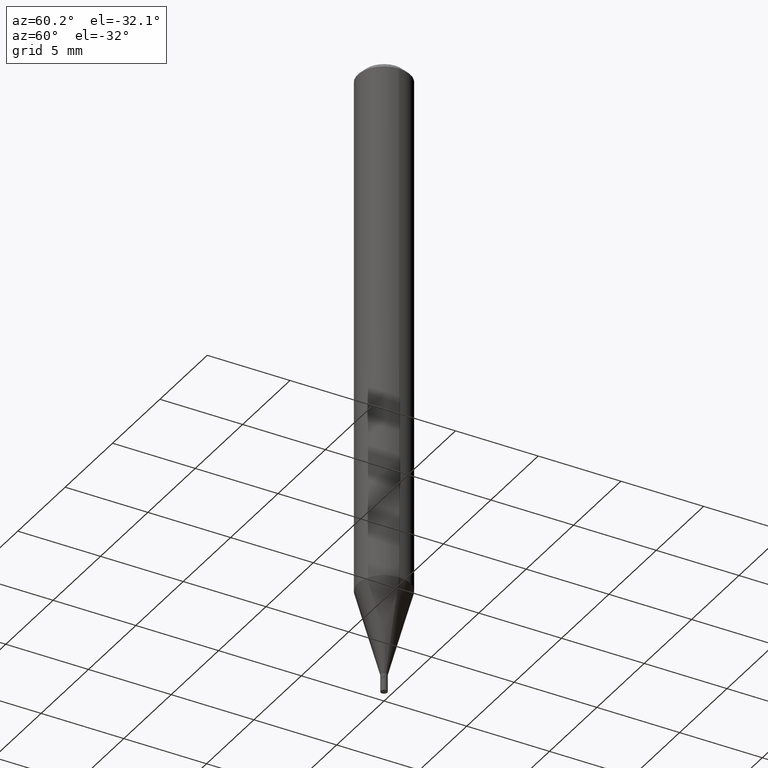
[diagram: clean part render]
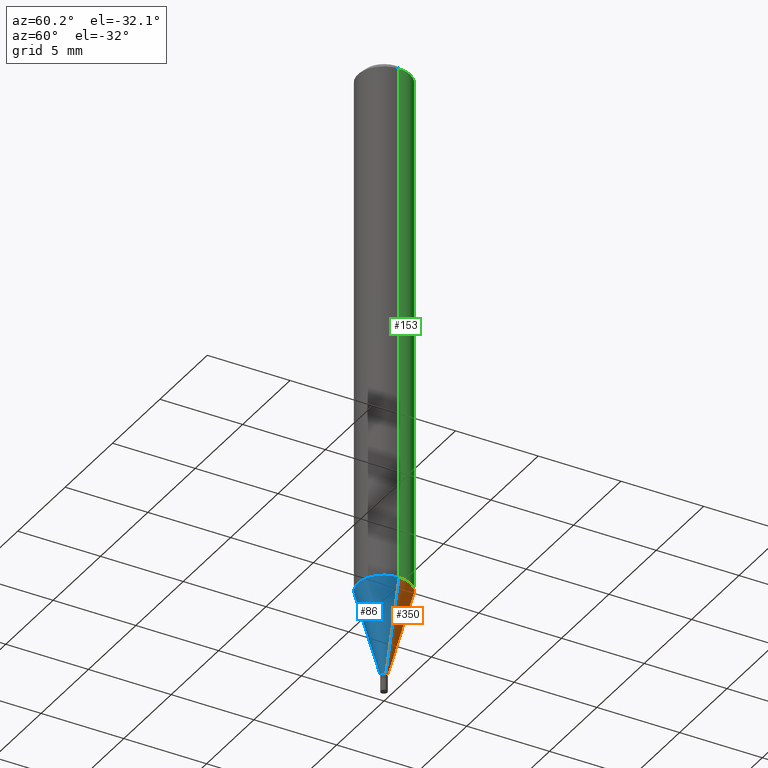
[diagram: same view with three faces highlighted in distinct colors, each labeled with its STEP entity id]
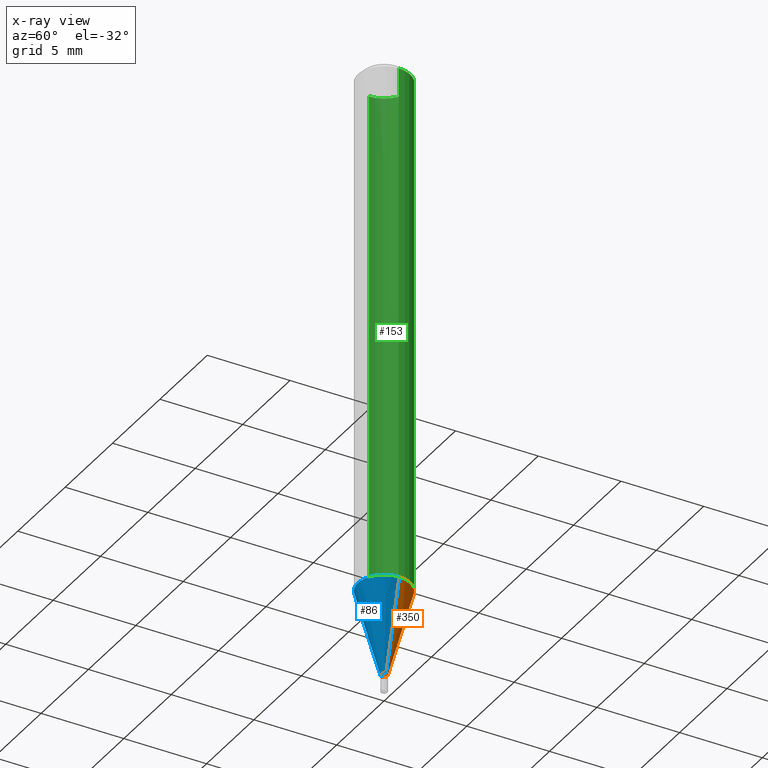
[diagram: x-ray of the same camera — body ghosted, the three highlighted faces saturated]
A machine part, auxiliary view with three faces highlighted in distinct colors.
The next image is the same camera in x-ray (body ghosted, the three faces saturated) — at least one of them is partly hidden behind the body in this view.
Their STEP definitions:

[orange] entity #350 — the highlighted conical surface has half-angle 15 deg.
#1 = DIRECTION ( 'NONE',  ( 1.000000000000000000, -6.982962677686232001E-15, 0.000000000000000000 ) ) ;
#21 = VERTEX_POINT ( 'NONE', #462 ) ;
#64 = EDGE_LOOP ( 'NONE', ( #453, #336, #349, #248 ) ) ;
#65 = LINE ( 'NONE', #432, #265 ) ;
#68 = DIRECTION ( 'NONE',  ( 0.2588190451025216832, 1.565188264969619798E-15, 0.9659258262890679791 ) ) ;
#76 = CARTESIAN_POINT ( 'NONE',  ( -0.007799999999999640554, -4.487934451483375945E-15, -1.459000000000000297 ) ) ;
#84 = CARTESIAN_POINT ( 'NONE',  ( 0.007799999999999640554, -5.148538382258100273E-15, -1.459000000000000297 ) ) ;
#94 = AXIS2_PLACEMENT_3D ( 'NONE', #139, #115, #1 ) ;
#96 = EDGE_CURVE ( 'NONE', #103, #212, #306, .T. ) ;
#103 = VERTEX_POINT ( 'NONE', #84 ) ;
#115 = DIRECTION ( 'NONE',  ( -2.445468806185136597E-29, 3.491481338843145583E-15, 1.000000000000000000 ) ) ;
#139 = CARTESIAN_POINT ( 'NONE',  ( 3.567938988224114792E-29, -5.094071273372150151E-15, -1.459000000000000297 ) ) ;
#157 = LINE ( 'NONE', #228, #443 ) ;
#189 = DIRECTION ( 'NONE',  ( -2.445468806185136597E-29, 3.491481338843145583E-15, 1.000000000000000000 ) ) ;
#193 = AXIS2_PLACEMENT_3D ( 'NONE', #371, #198, #329 ) ;
#198 = DIRECTION ( 'NONE',  ( -2.445468806185136597E-29, 3.491481338843145583E-15, 1.000000000000000000 ) ) ;
#204 = AXIS2_PLACEMENT_3D ( 'NONE', #367, #189, #331 ) ;
#212 = VERTEX_POINT ( 'NONE', #76 ) ;
#226 = EDGE_CURVE ( 'NONE', #103, #21, #65, .T. ) ;
#228 = CARTESIAN_POINT ( 'NONE',  ( -0.007799999999999640554, -5.038648939982864496E-15, -1.459000000000000297 ) ) ;
#248 = ORIENTED_EDGE ( 'NONE', *, *, #226, .F. ) ;
#261 = FACE_OUTER_BOUND ( 'NONE', #64, .T. ) ;
#265 = VECTOR ( 'NONE', #68, 39.37007874015748143 ) ;
#306 = CIRCLE ( 'NONE', #94, 0.007799999999999640554 ) ;
#326 = EDGE_CURVE ( 'NONE', #21, #385, #426, .T. ) ;
#329 = DIRECTION ( 'NONE',  ( 1.000000000000000000, -6.982962677686261189E-15, 0.000000000000000000 ) ) ;
#331 = DIRECTION ( 'NONE',  ( 1.000000000000000000, -6.982962677686232001E-15, 0.000000000000000000 ) ) ;
#336 = ORIENTED_EDGE ( 'NONE', *, *, #372, .T. ) ;
#343 = CONICAL_SURFACE ( 'NONE', #204, 0.007799999999999640554, 0.2617993877991502960 ) ;
#349 = ORIENTED_EDGE ( 'NONE', *, *, #326, .F. ) ;
#350 = ADVANCED_FACE ( 'NONE', ( #261 ), #343, .T. ) ;
#367 = CARTESIAN_POINT ( 'NONE',  ( 3.567938988224114792E-29, -5.094071273372150151E-15, -1.459000000000000297 ) ) ;
#371 = CARTESIAN_POINT ( 'NONE',  ( 3.068713211558588799E-29, -4.381309172833951587E-15, -1.254856820825981378 ) ) ;
#372 = EDGE_CURVE ( 'NONE', #212, #385, #157, .T. ) ;
#374 = CARTESIAN_POINT ( 'NONE',  ( -0.06250000000000015266, -3.937219962983887393E-15, -1.254856820825981378 ) ) ;
#385 = VERTEX_POINT ( 'NONE', #374 ) ;
#426 = CIRCLE ( 'NONE', #193, 0.06250000000000015266 ) ;
#432 = CARTESIAN_POINT ( 'NONE',  ( 0.007799999999999640554, -5.148538382258100273E-15, -1.459000000000000297 ) ) ;
#437 = DIRECTION ( 'NONE',  ( -0.2588190451025216832, 5.211531920934551831E-15, 0.9659258262890679791 ) ) ;
#443 = VECTOR ( 'NONE', #437, 39.37007874015748143 ) ;
#453 = ORIENTED_EDGE ( 'NONE', *, *, #96, .T. ) ;
#462 = CARTESIAN_POINT ( 'NONE',  ( 0.06250000000000015266, -4.817744340189344045E-15, -1.254856820825981378 ) ) ;

[blue] entity #86 — the highlighted conical surface has half-angle 15 deg.
#3 = EDGE_CURVE ( 'NONE', #212, #103, #213, .T. ) ;
#21 = VERTEX_POINT ( 'NONE', #462 ) ;
#25 = AXIS2_PLACEMENT_3D ( 'NONE', #227, #363, #45 ) ;
#39 = DIRECTION ( 'NONE',  ( -2.445468806185136597E-29, 3.491481338843145583E-15, 1.000000000000000000 ) ) ;
#45 = DIRECTION ( 'NONE',  ( 1.000000000000000000, -6.982962677686261189E-15, 0.000000000000000000 ) ) ;
#54 = EDGE_CURVE ( 'NONE', #385, #21, #117, .T. ) ;
#65 = LINE ( 'NONE', #432, #265 ) ;
#68 = DIRECTION ( 'NONE',  ( 0.2588190451025216832, 1.565188264969619798E-15, 0.9659258262890679791 ) ) ;
#69 = AXIS2_PLACEMENT_3D ( 'NONE', #436, #398, #459 ) ;
#76 = CARTESIAN_POINT ( 'NONE',  ( -0.007799999999999640554, -4.487934451483375945E-15, -1.459000000000000297 ) ) ;
#84 = CARTESIAN_POINT ( 'NONE',  ( 0.007799999999999640554, -5.148538382258100273E-15, -1.459000000000000297 ) ) ;
#86 = ADVANCED_FACE ( 'NONE', ( #399 ), #175, .T. ) ;
#97 = ORIENTED_EDGE ( 'NONE', *, *, #226, .T. ) ;
#103 = VERTEX_POINT ( 'NONE', #84 ) ;
#117 = CIRCLE ( 'NONE', #25, 0.06250000000000015266 ) ;
#157 = LINE ( 'NONE', #228, #443 ) ;
#158 = ORIENTED_EDGE ( 'NONE', *, *, #54, .F. ) ;
#175 = CONICAL_SURFACE ( 'NONE', #384, 0.007799999999999640554, 0.2617993877991502960 ) ;
#191 = CARTESIAN_POINT ( 'NONE',  ( 3.567938988224114792E-29, -5.094071273372150151E-15, -1.459000000000000297 ) ) ;
#212 = VERTEX_POINT ( 'NONE', #76 ) ;
#213 = CIRCLE ( 'NONE', #69, 0.007799999999999640554 ) ;
#226 = EDGE_CURVE ( 'NONE', #103, #21, #65, .T. ) ;
#227 = CARTESIAN_POINT ( 'NONE',  ( 3.068713211558588799E-29, -4.381309172833951587E-15, -1.254856820825981378 ) ) ;
#228 = CARTESIAN_POINT ( 'NONE',  ( -0.007799999999999640554, -5.038648939982864496E-15, -1.459000000000000297 ) ) ;
#265 = VECTOR ( 'NONE', #68, 39.37007874015748143 ) ;
#292 = EDGE_LOOP ( 'NONE', ( #315, #300, #97, #158 ) ) ;
#300 = ORIENTED_EDGE ( 'NONE', *, *, #3, .T. ) ;
#315 = ORIENTED_EDGE ( 'NONE', *, *, #372, .F. ) ;
#327 = DIRECTION ( 'NONE',  ( 1.000000000000000000, -6.982962677686232001E-15, 0.000000000000000000 ) ) ;
#363 = DIRECTION ( 'NONE',  ( -2.445468806185136597E-29, 3.491481338843145583E-15, 1.000000000000000000 ) ) ;
#372 = EDGE_CURVE ( 'NONE', #212, #385, #157, .T. ) ;
#374 = CARTESIAN_POINT ( 'NONE',  ( -0.06250000000000015266, -3.937219962983887393E-15, -1.254856820825981378 ) ) ;
#384 = AXIS2_PLACEMENT_3D ( 'NONE', #191, #39, #327 ) ;
#385 = VERTEX_POINT ( 'NONE', #374 ) ;
#398 = DIRECTION ( 'NONE',  ( -2.445468806185136597E-29, 3.491481338843145583E-15, 1.000000000000000000 ) ) ;
#399 = FACE_OUTER_BOUND ( 'NONE', #292, .T. ) ;
#432 = CARTESIAN_POINT ( 'NONE',  ( 0.007799999999999640554, -5.148538382258100273E-15, -1.459000000000000297 ) ) ;
#436 = CARTESIAN_POINT ( 'NONE',  ( 3.567938988224114792E-29, -5.094071273372150151E-15, -1.459000000000000297 ) ) ;
#437 = DIRECTION ( 'NONE',  ( -0.2588190451025216832, 5.211531920934551831E-15, 0.9659258262890679791 ) ) ;
#443 = VECTOR ( 'NONE', #437, 39.37007874015748143 ) ;
#459 = DIRECTION ( 'NONE',  ( 1.000000000000000000, -6.982962677686232001E-15, 0.000000000000000000 ) ) ;
#462 = CARTESIAN_POINT ( 'NONE',  ( 0.06250000000000015266, -4.817744340189344045E-15, -1.254856820825981378 ) ) ;

[green] entity #153 — the highlighted cylindrical surface (edge-blend (fillet) strip) has radius 1.5875 mm, axis along (-0, 0, 1).
#7 = DIRECTION ( 'NONE',  ( -2.445468806185136597E-29, 3.491481338843145583E-15, 1.000000000000000000 ) ) ;
#21 = VERTEX_POINT ( 'NONE', #462 ) ;
#42 = CIRCLE ( 'NONE', #100, 0.06250000000000001388 ) ;
#51 = VERTEX_POINT ( 'NONE', #75 ) ;
#56 = ORIENTED_EDGE ( 'NONE', *, *, #308, .F. ) ;
#75 = CARTESIAN_POINT ( 'NONE',  ( -0.06250000000000001388, -1.772751486608234942E-15, -0.01499999999999999944 ) ) ;
#78 = CARTESIAN_POINT ( 'NONE',  ( -0.06250000000000008327, 4.440892098500632078E-16, -3.074334431409319967E-30 ) ) ;
#80 = AXIS2_PLACEMENT_3D ( 'NONE', #295, #438, #330 ) ;
#85 = DIRECTION ( 'NONE',  ( 1.000000000000000000, -6.982962677686267499E-15, 0.000000000000000000 ) ) ;
#93 = EDGE_CURVE ( 'NONE', #385, #51, #285, .T. ) ;
#100 = AXIS2_PLACEMENT_3D ( 'NONE', #123, #7, #85 ) ;
#120 = CYLINDRICAL_SURFACE ( 'NONE', #80, 0.06250000000000008327 ) ;
#123 = CARTESIAN_POINT ( 'NONE',  ( 3.668203209277705088E-31, -5.237222008264718399E-17, -0.01499999999999999944 ) ) ;
#127 = LINE ( 'NONE', #234, #401 ) ;
#132 = ORIENTED_EDGE ( 'NONE', *, *, #326, .T. ) ;
#153 = ADVANCED_FACE ( 'NONE', ( #154 ), #120, .T. ) ;
#154 = FACE_OUTER_BOUND ( 'NONE', #268, .T. ) ;
#171 = ORIENTED_EDGE ( 'NONE', *, *, #388, .F. ) ;
#193 = AXIS2_PLACEMENT_3D ( 'NONE', #371, #198, #329 ) ;
#198 = DIRECTION ( 'NONE',  ( -2.445468806185136597E-29, 3.491481338843145583E-15, 1.000000000000000000 ) ) ;
#234 = CARTESIAN_POINT ( 'NONE',  ( 0.06250000000000008327, -4.364351673553922611E-16, 3.047610484872464074E-30 ) ) ;
#243 = ORIENTED_EDGE ( 'NONE', *, *, #93, .T. ) ;
#264 = DIRECTION ( 'NONE',  ( -2.445468806185136877E-29, 3.491481338843145188E-15, 1.000000000000000000 ) ) ;
#268 = EDGE_LOOP ( 'NONE', ( #132, #243, #171, #56 ) ) ;
#285 = LINE ( 'NONE', #78, #287 ) ;
#287 = VECTOR ( 'NONE', #402, 39.37007874015748143 ) ;
#295 = CARTESIAN_POINT ( 'NONE',  ( 0.000000000000000000, 0.000000000000000000, 0.000000000000000000 ) ) ;
#308 = EDGE_CURVE ( 'NONE', #21, #390, #127, .T. ) ;
#326 = EDGE_CURVE ( 'NONE', #21, #385, #426, .T. ) ;
#329 = DIRECTION ( 'NONE',  ( 1.000000000000000000, -6.982962677686261189E-15, 0.000000000000000000 ) ) ;
#330 = DIRECTION ( 'NONE',  ( 1.000000000000000000, -6.982962677686266711E-15, 4.876176775795935793E-29 ) ) ;
#369 = CARTESIAN_POINT ( 'NONE',  ( 0.06250000000000001388, -4.888073874380389458E-16, -0.01499999999999999944 ) ) ;
#371 = CARTESIAN_POINT ( 'NONE',  ( 3.068713211558588799E-29, -4.381309172833951587E-15, -1.254856820825981378 ) ) ;
#374 = CARTESIAN_POINT ( 'NONE',  ( -0.06250000000000015266, -3.937219962983887393E-15, -1.254856820825981378 ) ) ;
#385 = VERTEX_POINT ( 'NONE', #374 ) ;
#388 = EDGE_CURVE ( 'NONE', #390, #51, #42, .T. ) ;
#390 = VERTEX_POINT ( 'NONE', #369 ) ;
#401 = VECTOR ( 'NONE', #264, 39.37007874015748143 ) ;
#402 = DIRECTION ( 'NONE',  ( -2.445468806185136877E-29, 3.491481338843145188E-15, 1.000000000000000000 ) ) ;
#426 = CIRCLE ( 'NONE', #193, 0.06250000000000015266 ) ;
#438 = DIRECTION ( 'NONE',  ( -2.445468806185136597E-29, 3.491481338843145583E-15, 1.000000000000000000 ) ) ;
#462 = CARTESIAN_POINT ( 'NONE',  ( 0.06250000000000015266, -4.817744340189344045E-15, -1.254856820825981378 ) ) ;